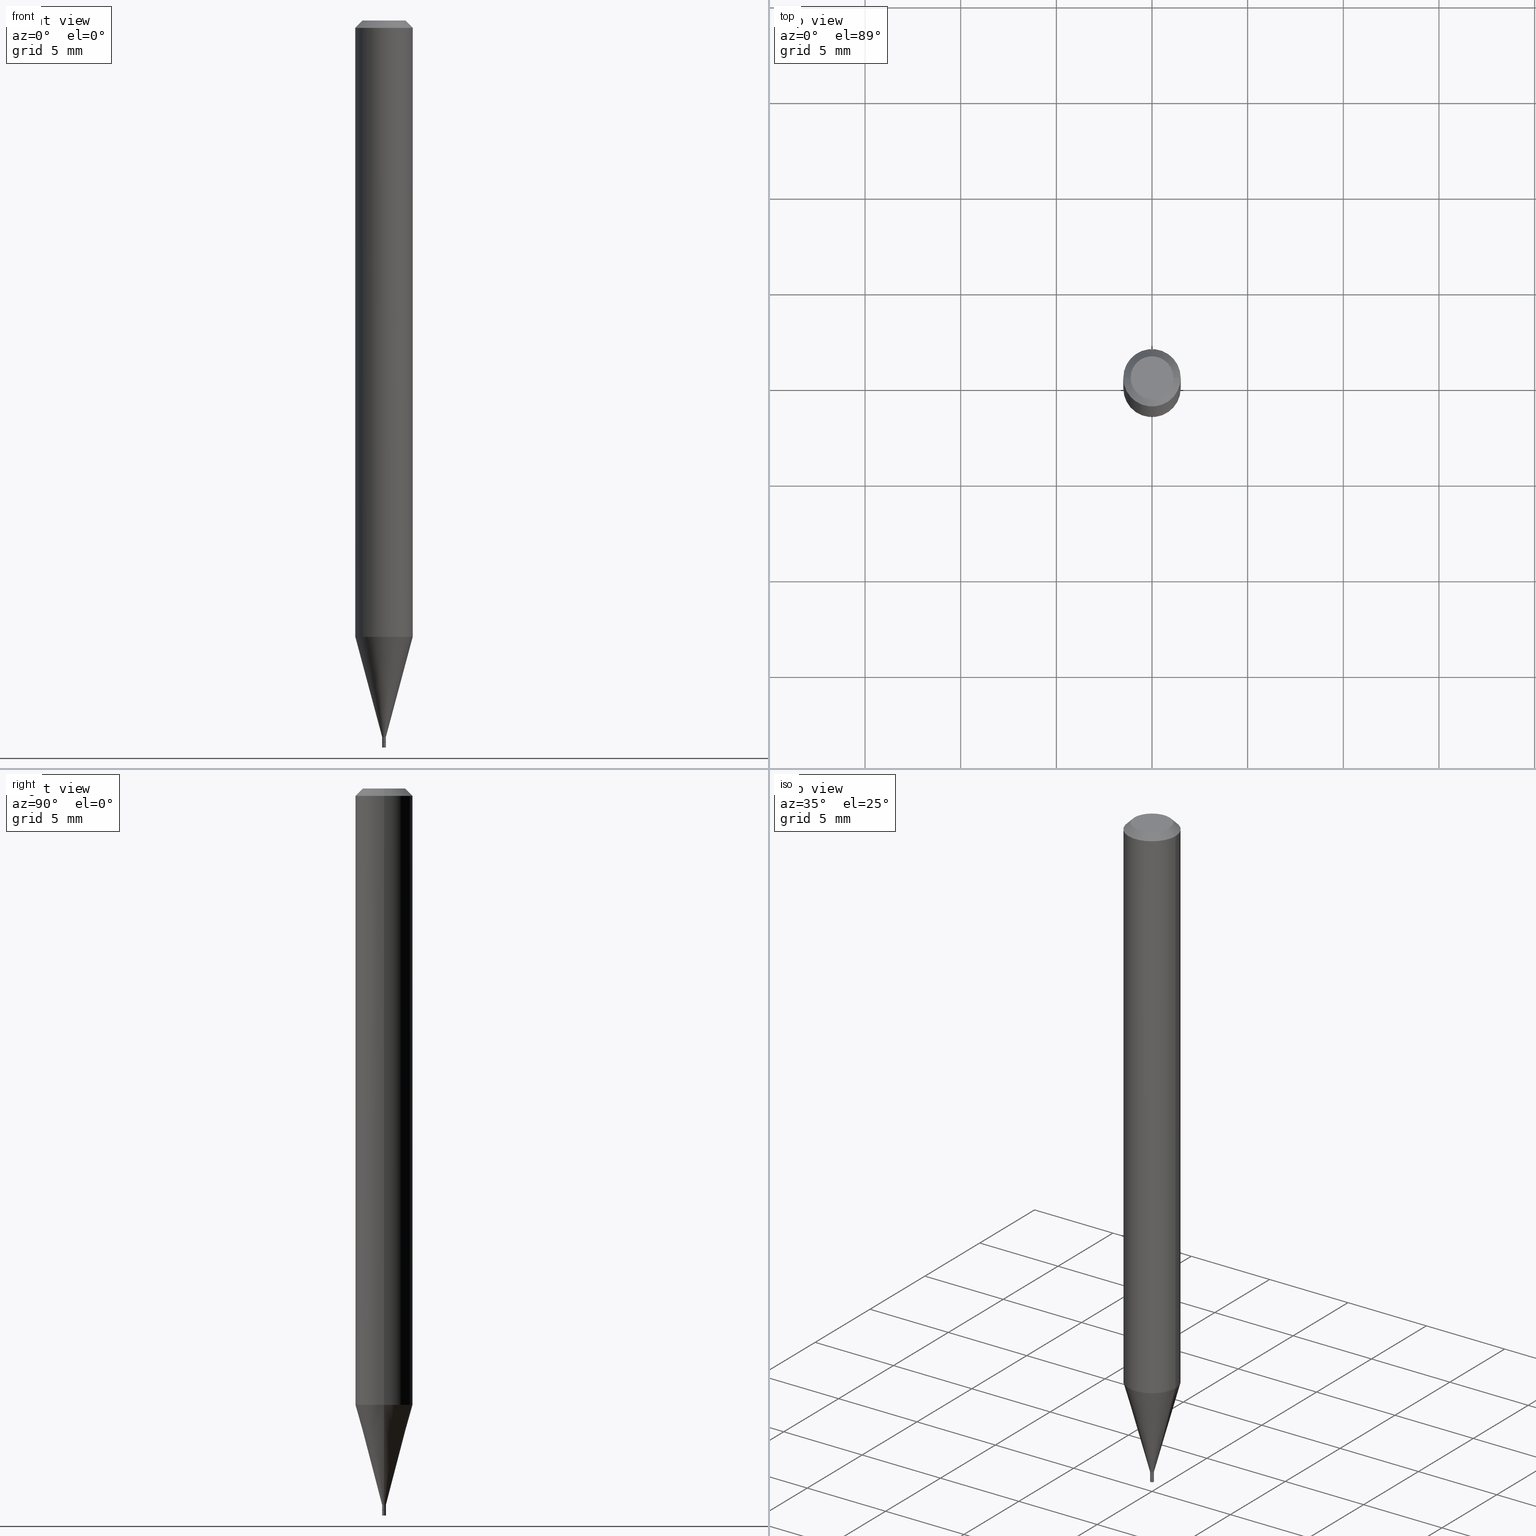
[diagram: canonical four-view strip — front | top / right | iso, engineering-drawing reading convention]
A machine part, canonical four-view strip (front | top / right | iso — engineering-drawing reading convention). The complete STEP part file that produces these views, byte-faithful:
ISO-10303-21;
HEADER;
FILE_DESCRIPTION (( 'STEP AP203' ),
    '1' );
FILE_NAME ('01801.STEP',
    '2024-03-20T01:22:48',
    ( '' ),
    ( '' ),
    'SwSTEP 2.0',
    'SolidWorks 2023',
    '' );
FILE_SCHEMA (( 'CONFIG_CONTROL_DESIGN' ));
ENDSEC;

DATA;
#1 = VERTEX_POINT ( 'NONE', #34 ) ;
#2 = DIRECTION ( 'NONE',  ( 1.000000000000000000, -6.982962677686224112E-15, 0.000000000000000000 ) ) ;
#3 = PERSON_AND_ORGANIZATION ( #302, #241 ) ;
#4 = CIRCLE ( 'NONE', #74, 0.003449999999999872006 ) ;
#5 = ORIENTED_EDGE ( 'NONE', *, *, #448, .T. ) ;
#6 = DIRECTION ( 'NONE',  ( -2.445468806185136597E-29, 3.491481338843145583E-15, 1.000000000000000000 ) ) ;
#7 = EDGE_CURVE ( 'NONE', #266, #382, #298, .T. ) ;
#8 = AXIS2_PLACEMENT_3D ( 'NONE', #439, #111, #260 ) ;
#9 = CC_DESIGN_PERSON_AND_ORGANIZATION_ASSIGNMENT ( #169, #415, ( #187 ) ) ;
#10 = ORIENTED_EDGE ( 'NONE', *, *, #262, .T. ) ;
#11 = CARTESIAN_POINT ( 'NONE',  ( 0.05904999999999999832, -4.841162332867759001E-15, -1.268464000502953493 ) ) ;
#12 = EDGE_LOOP ( 'NONE', ( #151, #57, #171, #96 ) ) ;
#13 = DIRECTION ( 'NONE',  ( 1.000000000000000000, -6.982962677686267499E-15, 4.876176775795936353E-29 ) ) ;
#14 = LINE ( 'NONE', #44, #290 ) ;
#15 = CC_DESIGN_PERSON_AND_ORGANIZATION_ASSIGNMENT ( #3, #319, ( #146 ) ) ;
#16 = AXIS2_PLACEMENT_3D ( 'NONE', #360, #25, #386 ) ;
#17 = AXIS2_PLACEMENT_3D ( 'NONE', #395, #287, #170 ) ;
#18 = CARTESIAN_POINT ( 'NONE',  ( 3.629809349020597767E-29, -5.182405751244879809E-15, -1.484299999999999731 ) ) ;
#19 = FACE_OUTER_BOUND ( 'NONE', #296, .T. ) ;
#20 = CONICAL_SURFACE ( 'NONE', #204, 0.003949999999999506857, 0.2617993877991499629 ) ;
#21 = ORIENTED_EDGE ( 'NONE', *, *, #354, .T. ) ;
#22 = PLANE ( 'NONE',  #59 ) ;
#23 = COORDINATED_UNIVERSAL_TIME_OFFSET ( 5, 0, .BEHIND. ) ;
#24 = ORIENTED_EDGE ( 'NONE', *, *, #147, .T. ) ;
#25 = DIRECTION ( 'NONE',  ( -2.445468806185136597E-29, 3.491481338843145583E-15, 1.000000000000000000 ) ) ;
#26 = EDGE_CURVE ( 'NONE', #304, #199, #133, .T. ) ;
#27 = DATE_AND_TIME ( #425, #155 ) ;
#28 = ORIENTED_EDGE ( 'NONE', *, *, #70, .F. ) ;
#29 = VECTOR ( 'NONE', #267, 39.37007874015748143 ) ;
#30 = EDGE_LOOP ( 'NONE', ( #349, #101, #76, #447 ) ) ;
#31 = ADVANCED_FACE ( 'NONE', ( #175 ), #229, .T. ) ;
#32 = DIRECTION ( 'NONE',  ( 1.000000000000000000, -6.982962677686266711E-15, 4.876176775795936353E-29 ) ) ;
#33 = COORDINATED_UNIVERSAL_TIME_OFFSET ( 5, 0, .BEHIND. ) ;
#34 = CARTESIAN_POINT ( 'NONE',  ( -0.003949999999999873751, -5.174939053081532685E-15, -1.484299999999999731 ) ) ;
#35 = ADVANCED_FACE ( 'NONE', ( #72 ), #409, .T. ) ;
#36 = VERTEX_POINT ( 'NONE', #350 ) ;
#37 = CLOSED_SHELL ( 'NONE', ( #398, #324, #47, #208 ) ) ;
#38 = AXIS2_PLACEMENT_3D ( 'NONE', #383, #61, #64 ) ;
#39 = CC_DESIGN_APPROVAL ( #455, ( #187 ) ) ;
#40 = CARTESIAN_POINT ( 'NONE',  ( -0.003949999999999873751, -5.174939053081532685E-15, -1.496099999999999985 ) ) ;
#41 = ORIENTED_EDGE ( 'NONE', *, *, #389, .F. ) ;
#42 = CARTESIAN_POINT ( 'NONE',  ( 3.604865567197509774E-29, -5.146792641588681136E-15, -1.474099999999999966 ) ) ;
#43 = CARTESIAN_POINT ( 'NONE',  ( 3.629809349020597767E-29, -5.182405751244879809E-15, -1.484299999999999731 ) ) ;
#44 = CARTESIAN_POINT ( 'NONE',  ( 0.05904999999999999832, -4.574846268510561447E-16, -0.01499999999999999944 ) ) ;
#45 = AXIS2_PLACEMENT_3D ( 'NONE', #174, #445, #81 ) ;
#46 = CARTESIAN_POINT ( 'NONE',  ( 3.101989144998780290E-29, -4.428818386750384870E-15, -1.268464000502953493 ) ) ;
#47 = ADVANCED_FACE ( 'NONE', ( #437 ), #255, .T. ) ;
#48 = CARTESIAN_POINT ( 'NONE',  ( 0.000000000000000000, 0.000000000000000000, 0.000000000000000000 ) ) ;
#49 = PERSON_AND_ORGANIZATION_ROLE ( 'design_owner' ) ;
#50 = PRODUCT_DEFINITION ( 'UNKNOWN', '', #187, #261 ) ;
#51 = DIRECTION ( 'NONE',  ( -1.000000000000000000, 6.982962677686265922E-15, -4.876176775795935793E-29 ) ) ;
#52 = CARTESIAN_POINT ( 'NONE',  ( -0.003449999999999872006, -5.155242799687046274E-15, -1.484299999999999731 ) ) ;
#53 = CIRCLE ( 'NONE', #410, 0.05904999999999999832 ) ;
#54 = FACE_OUTER_BOUND ( 'NONE', #63, .T. ) ;
#55 = DIRECTION ( 'NONE',  ( 1.000000000000000000, -6.982962677686265922E-15, 4.876176775795935793E-29 ) ) ;
#56 = APPROVAL ( #446, 'UNSPECIFIED' ) ;
#57 = ORIENTED_EDGE ( 'NONE', *, *, #389, .T. ) ;
#59 = AXIS2_PLACEMENT_3D ( 'NONE', #282, #234, #55 ) ;
#58 = SECURITY_CLASSIFICATION_LEVEL ( 'unclassified' ) ;
#60 = VERTEX_POINT ( 'NONE', #105 ) ;
#61 = DIRECTION ( 'NONE',  ( -2.445468806185136597E-29, 3.491481338843145583E-15, 1.000000000000000000 ) ) ;
#62 = DIRECTION ( 'NONE',  ( -2.445468806185136597E-29, 3.491481338843145583E-15, 1.000000000000000000 ) ) ;
#63 = EDGE_LOOP ( 'NONE', ( #21, #161 ) ) ;
#64 = DIRECTION ( 'NONE',  ( 1.000000000000000000, -6.982962677686352696E-15, 0.000000000000000000 ) ) ;
#65 = EDGE_LOOP ( 'NONE', ( #243, #24, #346, #194 ) ) ;
#66 = FACE_OUTER_BOUND ( 'NONE', #65, .T. ) ;
#67 = COORDINATED_UNIVERSAL_TIME_OFFSET ( 5, 0, .BEHIND. ) ;
#68 = CIRCLE ( 'NONE', #104, 0.003949999999999506857 ) ;
#69 = ORIENTED_EDGE ( 'NONE', *, *, #165, .F. ) ;
#70 = EDGE_CURVE ( 'NONE', #190, #198, #68, .T. ) ;
#71 = PRODUCT_DEFINITION_SHAPE ( 'NONE', 'NONE',  #50 ) ;
#72 = FACE_OUTER_BOUND ( 'NONE', #314, .T. ) ;
#73 = DIRECTION ( 'NONE',  ( 1.000000000000000000, -6.982962677686362163E-15, 0.000000000000000000 ) ) ;
#74 = AXIS2_PLACEMENT_3D ( 'NONE', #115, #228, #364 ) ;
#75 = CARTESIAN_POINT ( 'NONE',  ( 0.003949999999999873751, -5.251187933620089416E-15, -1.496099999999999985 ) ) ;
#76 = ORIENTED_EDGE ( 'NONE', *, *, #189, .T. ) ;
#77 = CYLINDRICAL_SURFACE ( 'NONE', #451, 0.05904999999999999832 ) ;
#78 = DIRECTION ( 'NONE',  ( -2.445468806185136597E-29, 3.491481338843145583E-15, 1.000000000000000000 ) ) ;
#79 = DIRECTION ( 'NONE',  ( 1.000000000000000000, -6.982962677686381095E-15, 0.000000000000000000 ) ) ;
#80 = EDGE_CURVE ( 'NONE', #248, #283, #450, .T. ) ;
#81 = DIRECTION ( 'NONE',  ( 1.000000000000000000, -6.982962677686267499E-15, 4.876176775795936353E-29 ) ) ;
#82 = CIRCLE ( 'NONE', #284, 0.04404999999999999888 ) ;
#83 = FACE_OUTER_BOUND ( 'NONE', #12, .T. ) ;
#84 = PLANE ( 'NONE',  #299 ) ;
#85 = COORDINATED_UNIVERSAL_TIME_OFFSET ( 5, 0, .BEHIND. ) ;
#86 = CARTESIAN_POINT ( 'NONE',  ( 3.629809349020597767E-29, -5.182405751244879809E-15, -1.484299999999999731 ) ) ;
#87 = LINE ( 'NONE', #114, #29 ) ;
#88 = VECTOR ( 'NONE', #371, 39.37007874015748143 ) ;
#89 = ORIENTED_EDGE ( 'NONE', *, *, #189, .F. ) ;
#90 = DIRECTION ( 'NONE',  ( -2.445468806185136877E-29, 3.491481338843145188E-15, 1.000000000000000000 ) ) ;
#91 = VERTEX_POINT ( 'NONE', #361 ) ;
#92 = ADVANCED_FACE ( 'NONE', ( #139 ), #142, .F. ) ;
#93 = ORIENTED_EDGE ( 'NONE', *, *, #7, .F. ) ;
#94 = AXIS2_PLACEMENT_3D ( 'NONE', #18, #231, #264 ) ;
#95 = PRODUCT_RELATED_PRODUCT_CATEGORY ( 'detail', '', ( #214 ) ) ;
#96 = ORIENTED_EDGE ( 'NONE', *, *, #262, .F. ) ;
#97 = FACE_OUTER_BOUND ( 'NONE', #309, .T. ) ;
#98 = APPROVAL_ROLE ( '' ) ;
#99 = ORIENTED_EDGE ( 'NONE', *, *, #277, .T. ) ;
#100 = DATE_AND_TIME ( #159, #178 ) ;
#101 = ORIENTED_EDGE ( 'NONE', *, *, #235, .T. ) ;
#102 = EDGE_CURVE ( 'NONE', #266, #36, #252, .T. ) ;
#103 = DIRECTION ( 'NONE',  ( -2.445468806185136597E-29, 3.491481338843145583E-15, 1.000000000000000000 ) ) ;
#104 = AXIS2_PLACEMENT_3D ( 'NONE', #42, #257, #79 ) ;
#105 = CARTESIAN_POINT ( 'NONE',  ( 0.05904999999999999832, -4.647161662000212105E-16, -0.01499999999999999944 ) ) ;
#106 = LOCAL_TIME ( 21, 22, 48.00000000000000000, #85 ) ;
#107 = LOCAL_TIME ( 21, 22, 48.00000000000000000, #378 ) ;
#108 = ADVANCED_BREP_SHAPE_REPRESENTATION ( '01801', ( #440, #433, #400 ), #172 ) ;
#109 = CARTESIAN_POINT ( 'NONE',  ( -0.05904999999999999832, 3.599717260347268549E-16, -0.01499999999999999944 ) ) ;
#110 = ADVANCED_FACE ( 'NONE', ( #83 ), #220, .T. ) ;
#111 = DIRECTION ( 'NONE',  ( -2.445468806185136597E-29, 3.491481338843145583E-15, 1.000000000000000000 ) ) ;
#112 = DIRECTION ( 'NONE',  ( -2.438088387897960049E-29, 3.491481338843145188E-15, 1.000000000000000000 ) ) ;
#113 = AXIS2_PLACEMENT_3D ( 'NONE', #48, #181, #13 ) ;
#114 = CARTESIAN_POINT ( 'NONE',  ( -0.003949999999999650839, 2.806643806252147640E-17, -1.942979360650516178E-31 ) ) ;
#115 = CARTESIAN_POINT ( 'NONE',  ( 3.629809349020597767E-29, -5.182405751244879809E-15, -1.484299999999999731 ) ) ;
#116 = DIRECTION ( 'NONE',  ( 2.438088387897960049E-29, -3.491481338843145188E-15, -1.000000000000000000 ) ) ;
#117 = CARTESIAN_POINT ( 'NONE',  ( 0.003949999999999650839, -2.758270257685831733E-17, 1.926089826439224533E-31 ) ) ;
#118 = VECTOR ( 'NONE', #223, 39.37007874015748143 ) ;
#119 = PERSON_AND_ORGANIZATION ( #302, #241 ) ;
#120 = VERTEX_POINT ( 'NONE', #40 ) ;
#121 = ORIENTED_EDGE ( 'NONE', *, *, #102, .F. ) ;
#122 = CARTESIAN_POINT ( 'NONE',  ( -0.05904999999999999832, 4.195754854663391478E-16, -2.904631170795521892E-30 ) ) ;
#123 = PERSON_AND_ORGANIZATION ( #302, #241 ) ;
#124 = ORIENTED_EDGE ( 'NONE', *, *, #251, .T. ) ;
#125 = DIRECTION ( 'NONE',  ( -2.445468806185136877E-29, 3.491481338843145188E-15, 1.000000000000000000 ) ) ;
#126 = APPROVAL_PERSON_ORGANIZATION ( #119, #56, #224 ) ;
#127 = VERTEX_POINT ( 'NONE', #75 ) ;
#128 = ORIENTED_EDGE ( 'NONE', *, *, #70, .T. ) ;
#129 = APPROVAL_STATUS ( 'not_yet_approved' ) ;
#130 = EDGE_CURVE ( 'NONE', #304, #348, #363, .T. ) ;
#131 = UNCERTAINTY_MEASURE_WITH_UNIT (LENGTH_MEASURE( 1.000000000000000082E-05 ), #370, 'distance_accuracy_value', 'NONE');
#132 = EDGE_CURVE ( 'NONE', #91, #36, #279, .T. ) ;
#133 = LINE ( 'NONE', #109, #315 ) ;
#134 = ORIENTED_EDGE ( 'NONE', *, *, #448, .F. ) ;
#135 =( LENGTH_UNIT ( ) NAMED_UNIT ( * ) SI_UNIT ( $, .METRE. ) );
#136 = CARTESIAN_POINT ( 'NONE',  ( 0.000000000000000000, 0.000000000000000000, 0.000000000000000000 ) ) ;
#137 = DIRECTION ( 'NONE',  ( 0.7071067811865647812, -2.468850131082438104E-15, 0.7071067811865301422 ) ) ;
#138 = ORIENTED_EDGE ( 'NONE', *, *, #80, .F. ) ;
#139 = FACE_OUTER_BOUND ( 'NONE', #416, .T. ) ;
#140 = EDGE_CURVE ( 'NONE', #382, #266, #4, .T. ) ;
#141 = CARTESIAN_POINT ( 'NONE',  ( 1.050665501000263892E-45, -1.500071880218040753E-31, -4.296376622522831856E-17 ) ) ;
#142 = PLANE ( 'NONE',  #211 ) ;
#143 = CARTESIAN_POINT ( 'NONE',  ( 0.003949999999999873751, -5.209988453821739566E-15, -1.484299999999999731 ) ) ;
#144 = CLOSED_SHELL ( 'NONE', ( #152, #184, #35, #110, #379, #344, #424, #31, #222, #92, #405, #311 ) ) ;
#145 = DIRECTION ( 'NONE',  ( 0.7071067811865486830, -7.319954787623260779E-15, -0.7071067811865464625 ) ) ;
#146 = SECURITY_CLASSIFICATION ( '', '', #58 ) ;
#147 = EDGE_CURVE ( 'NONE', #198, #190, #399, .T. ) ;
#148 = DIRECTION ( 'NONE',  ( 1.000000000000000000, 0.000000000000000000, 0.000000000000000000 ) ) ;
#149 = CARTESIAN_POINT ( 'NONE',  ( 3.075995059520799729E-16, 0.04404999999999999888, -1.752816360886547343E-16 ) ) ;
#150 = APPLICATION_PROTOCOL_DEFINITION ( 'international standard', 'config_control_design', 1994, #206 ) ;
#151 = ORIENTED_EDGE ( 'NONE', *, *, #80, .T. ) ;
#152 = ADVANCED_FACE ( 'NONE', ( #192 ), #358, .T. ) ;
#153 = DIRECTION ( 'NONE',  ( -0.2588190451025212391, 5.211531920934549464E-15, 0.9659258262890679791 ) ) ;
#154 = CONICAL_SURFACE ( 'NONE', #268, 0.003949999999999506857, 0.2617993877991499629 ) ;
#155 = LOCAL_TIME ( 21, 22, 48.00000000000000000, #33 ) ;
#156 = DATE_AND_TIME ( #193, #107 ) ;
#157 = ORIENTED_EDGE ( 'NONE', *, *, #277, .F. ) ;
#158 = DIRECTION ( 'NONE',  ( -2.445468806185136597E-29, 3.491481338843145583E-15, 1.000000000000000000 ) ) ;
#159 = CALENDAR_DATE ( 2024, 19, 3 ) ;
#160 = ORIENTED_EDGE ( 'NONE', *, *, #132, .T. ) ;
#161 = ORIENTED_EDGE ( 'NONE', *, *, #256, .T. ) ;
#162 = DIRECTION ( 'NONE',  ( -2.445468806185136597E-29, 3.491481338843145583E-15, 1.000000000000000000 ) ) ;
#163 = AXIS2_PLACEMENT_3D ( 'NONE', #213, #291, #357 ) ;
#164 = CONICAL_SURFACE ( 'NONE', #94, 0.003449999999999872006, 0.7853981633974728149 ) ;
#165 = EDGE_CURVE ( 'NONE', #348, #60, #14, .T. ) ;
#166 = ORIENTED_EDGE ( 'NONE', *, *, #412, .F. ) ;
#167 = DIRECTION ( 'NONE',  ( 1.000000000000000000, -6.982962677686381095E-15, 0.000000000000000000 ) ) ;
#168 = CALENDAR_DATE ( 2024, 19, 3 ) ;
#169 = PERSON_AND_ORGANIZATION ( #302, #241 ) ;
#170 = DIRECTION ( 'NONE',  ( 1.000000000000000000, -6.982962677686266711E-15, 0.000000000000000000 ) ) ;
#171 = ORIENTED_EDGE ( 'NONE', *, *, #244, .F. ) ;
#172 =( GEOMETRIC_REPRESENTATION_CONTEXT ( 3 ) GLOBAL_UNCERTAINTY_ASSIGNED_CONTEXT ( ( #131 ) ) GLOBAL_UNIT_ASSIGNED_CONTEXT ( ( #370, #332, #335 ) ) REPRESENTATION_CONTEXT ( 'NONE', 'WORKASPACE' ) );
#173 = CARTESIAN_POINT ( 'NONE',  ( 0.003449999999999872006, -5.206496972482896558E-15, -1.484299999999999731 ) ) ;
#174 = CARTESIAN_POINT ( 'NONE',  ( 0.000000000000000000, 0.000000000000000000, 0.000000000000000000 ) ) ;
#175 = FACE_OUTER_BOUND ( 'NONE', #460, .T. ) ;
#176 = AXIS2_PLACEMENT_3D ( 'NONE', #136, #325, #434 ) ;
#177 = AXIS2_PLACEMENT_3D ( 'NONE', #461, #317, #341 ) ;
#178 = LOCAL_TIME ( 21, 22, 48.00000000000000000, #67 ) ;
#179 = CARTESIAN_POINT ( 'NONE',  ( 2.758270257689616417E-17, 0.003949999999994691265, -1.484299999999999731 ) ) ;
#180 = APPLICATION_CONTEXT ( 'configuration controlled 3d designs of mechanical parts and assemblies' ) ;
#181 = DIRECTION ( 'NONE',  ( -2.445468806185136597E-29, 3.491481338843145583E-15, 1.000000000000000000 ) ) ;
#182 = APPLICATION_PROTOCOL_DEFINITION ( 'international standard', 'config_control_design', 1994, #180 ) ;
#183 = DIRECTION ( 'NONE',  ( 0.2588190451025212391, 1.565188264969622362E-15, 0.9659258262890679791 ) ) ;
#184 = ADVANCED_FACE ( 'NONE', ( #19 ), #164, .T. ) ;
#185 = LINE ( 'NONE', #402, #420 ) ;
#186 = AXIS2_PLACEMENT_3D ( 'NONE', #179, #188, #51 ) ;
#187 = PRODUCT_DEFINITION_FORMATION_WITH_SPECIFIED_SOURCE ( 'ANY', '', #214, .NOT_KNOWN. ) ;
#188 = DIRECTION ( 'NONE',  ( 2.438088387897960049E-29, -3.491481338843145188E-15, -1.000000000000000000 ) ) ;
#189 = EDGE_CURVE ( 'NONE', #91, #190, #404, .T. ) ;
#190 = VERTEX_POINT ( 'NONE', #330 ) ;
#191 = CARTESIAN_POINT ( 'NONE',  ( 0.04404999999999999888, -3.798447818264461065E-16, -4.296376622522591500E-17 ) ) ;
#192 = FACE_OUTER_BOUND ( 'NONE', #237, .T. ) ;
#193 = CALENDAR_DATE ( 2024, 19, 3 ) ;
#194 = ORIENTED_EDGE ( 'NONE', *, *, #295, .F. ) ;
#195 = CARTESIAN_POINT ( 'NONE',  ( 3.604865567197509774E-29, -5.146792641588681136E-15, -1.474099999999999966 ) ) ;
#196 = CIRCLE ( 'NONE', #17, 0.05904999999999999832 ) ;
#197 = DATE_TIME_ROLE ( 'creation_date' ) ;
#198 = VERTEX_POINT ( 'NONE', #301 ) ;
#199 = VERTEX_POINT ( 'NONE', #375 ) ;
#200 = ORIENTED_EDGE ( 'NONE', *, *, #295, .T. ) ;
#201 = CARTESIAN_POINT ( 'NONE',  ( 3.628586614617505526E-29, -5.180660010575458306E-15, -1.483799999999999786 ) ) ;
#202 = CARTESIAN_POINT ( 'NONE',  ( 3.658665880933582389E-29, -5.223605231043229660E-15, -1.496099999999999985 ) ) ;
#203 = ORIENTED_EDGE ( 'NONE', *, *, #132, .F. ) ;
#204 = AXIS2_PLACEMENT_3D ( 'NONE', #195, #162, #167 ) ;
#205 = CC_DESIGN_APPROVAL ( #366, ( #146 ) ) ;
#206 = APPLICATION_CONTEXT ( 'configuration controlled 3d designs of mechanical parts and assemblies' ) ;
#207 = PERSON_AND_ORGANIZATION ( #302, #241 ) ;
#208 = ADVANCED_FACE ( 'NONE', ( #54 ), #407, .F. ) ;
#209 = DIRECTION ( 'NONE',  ( -2.445468806185136877E-29, 3.491481338843145188E-15, 1.000000000000000000 ) ) ;
#210 = DIRECTION ( 'NONE',  ( 1.000000000000000000, -6.982962677686273021E-15, 0.000000000000000000 ) ) ;
#211 = AXIS2_PLACEMENT_3D ( 'NONE', #43, #112, #327 ) ;
#212 = AXIS2_PLACEMENT_3D ( 'NONE', #202, #250, #323 ) ;
#213 = CARTESIAN_POINT ( 'NONE',  ( 3.668203209277705088E-31, -5.237222008264718399E-17, -0.01499999999999999944 ) ) ;
#214 = PRODUCT ( '01801', '01801', '', ( #376 ) ) ;
#215 = CARTESIAN_POINT ( 'NONE',  ( 3.668203209277705088E-31, -5.237222008264718399E-17, -0.01499999999999999944 ) ) ;
#216 = LINE ( 'NONE', #321, #254 ) ;
#217 = DIRECTION ( 'NONE',  ( -2.445468806185136597E-29, 3.491481338843145583E-15, 1.000000000000000000 ) ) ;
#218 = CONICAL_SURFACE ( 'NONE', #38, 0.003449999999999872006, 0.7853981633974728149 ) ;
#219 = CARTESIAN_POINT ( 'NONE',  ( -0.04404999999999999888, 3.337856159934033646E-16, -4.296376622523056188E-17 ) ) ;
#220 = CYLINDRICAL_SURFACE ( 'NONE', #435, 0.05904999999999999832 ) ;
#221 = PERSON_AND_ORGANIZATION ( #302, #241 ) ;
#222 = ADVANCED_FACE ( 'NONE', ( #441 ), #84, .F. ) ;
#223 = DIRECTION ( 'NONE',  ( -2.445468806185136877E-29, 3.491481338843145188E-15, 1.000000000000000000 ) ) ;
#224 = APPROVAL_ROLE ( '' ) ;
#225 = EDGE_CURVE ( 'NONE', #190, #248, #185, .T. ) ;
#226 = DIRECTION ( 'NONE',  ( 1.000000000000000000, -6.982962677686224112E-15, 0.000000000000000000 ) ) ;
#227 = CARTESIAN_POINT ( 'NONE',  ( 0.000000000000000000, 0.000000000000000000, 0.000000000000000000 ) ) ;
#228 = DIRECTION ( 'NONE',  ( -2.445468806185136597E-29, 3.491481338843145583E-15, 1.000000000000000000 ) ) ;
#229 = CONICAL_SURFACE ( 'NONE', #418, 0.05904999999999999832, 0.7853981633974498333 ) ;
#230 = CIRCLE ( 'NONE', #373, 0.003949999999999873751 ) ;
#231 = DIRECTION ( 'NONE',  ( -2.445468806185136597E-29, 3.491481338843145583E-15, 1.000000000000000000 ) ) ;
#232 = ORIENTED_EDGE ( 'NONE', *, *, #165, .T. ) ;
#233 = DIMENSIONAL_EXPONENTS ( 1.000000000000000000, 0.000000000000000000, 0.000000000000000000, 0.000000000000000000, 0.000000000000000000, 0.000000000000000000, 0.000000000000000000 ) ;
#234 = DIRECTION ( 'NONE',  ( -2.438088387897960049E-29, 3.491481338843145188E-15, 1.000000000000000000 ) ) ;
#235 = EDGE_CURVE ( 'NONE', #36, #91, #263, .T. ) ;
#236 = DIRECTION ( 'NONE',  ( 0.000000000000000000, 0.000000000000000000, 1.000000000000000000 ) ) ;
#237 = EDGE_LOOP ( 'NONE', ( #160, #124, #28, #89 ) ) ;
#238 = CYLINDRICAL_SURFACE ( 'NONE', #432, 0.003949999999999873751 ) ;
#239 = ORIENTED_EDGE ( 'NONE', *, *, #140, .T. ) ;
#240 = DIRECTION ( 'NONE',  ( 1.000000000000000000, -6.982962677686266711E-15, 4.876176775795935232E-29 ) ) ;
#241 = ORGANIZATION ( 'UNSPECIFIED', 'UNSPECIFIED', '' ) ;
#242 = APPROVAL_STATUS ( 'not_yet_approved' ) ;
#243 = ORIENTED_EDGE ( 'NONE', *, *, #372, .F. ) ;
#244 = EDGE_CURVE ( 'NONE', #60, #199, #53, .T. ) ;
#245 = APPROVAL_DATE_TIME ( #27, #455 ) ;
#246 = ORIENTED_EDGE ( 'NONE', *, *, #412, .T. ) ;
#247 = APPROVAL_DATE_TIME ( #276, #366 ) ;
#248 = VERTEX_POINT ( 'NONE', #11 ) ;
#249 = VECTOR ( 'NONE', #438, 39.37007874015748854 ) ;
#250 = DIRECTION ( 'NONE',  ( -2.445468806185136597E-29, 3.491481338843145583E-15, 1.000000000000000000 ) ) ;
#251 = EDGE_CURVE ( 'NONE', #36, #198, #87, .T. ) ;
#252 = LINE ( 'NONE', #293, #249 ) ;
#253 = DIRECTION ( 'NONE',  ( 2.445468806185136597E-29, -3.491481338843145583E-15, -1.000000000000000000 ) ) ;
#254 = VECTOR ( 'NONE', #209, 39.37007874015748143 ) ;
#255 = CYLINDRICAL_SURFACE ( 'NONE', #176, 0.003949999999999873751 ) ;
#256 = EDGE_CURVE ( 'NONE', #1, #313, #230, .T. ) ;
#257 = DIRECTION ( 'NONE',  ( -2.445468806185136597E-29, 3.491481338843145583E-15, 1.000000000000000000 ) ) ;
#258 = CC_DESIGN_DATE_AND_TIME_ASSIGNMENT ( #318, #197, ( #50 ) ) ;
#259 = ORIENTED_EDGE ( 'NONE', *, *, #396, .F. ) ;
#260 = DIRECTION ( 'NONE',  ( 1.000000000000000000, -6.982962677686273021E-15, 0.000000000000000000 ) ) ;
#261 = DESIGN_CONTEXT ( 'detailed design', #206, 'design' ) ;
#262 = EDGE_CURVE ( 'NONE', #248, #60, #339, .T. ) ;
#263 = CIRCLE ( 'NONE', #280, 0.003949999999999795688 ) ;
#264 = DIRECTION ( 'NONE',  ( 1.000000000000000000, -6.982962677686352696E-15, 0.000000000000000000 ) ) ;
#265 = PERSON_AND_ORGANIZATION_ROLE ( 'creator' ) ;
#266 = VERTEX_POINT ( 'NONE', #52 ) ;
#267 = DIRECTION ( 'NONE',  ( -2.445468806185136877E-29, 3.491481338843145188E-15, 1.000000000000000000 ) ) ;
#268 = AXIS2_PLACEMENT_3D ( 'NONE', #269, #158, #458 ) ;
#269 = CARTESIAN_POINT ( 'NONE',  ( 3.604865567197509774E-29, -5.146792641588681136E-15, -1.474099999999999966 ) ) ;
#270 = APPROVAL_PERSON_ORGANIZATION ( #207, #455, #98 ) ;
#271 = ORIENTED_EDGE ( 'NONE', *, *, #354, .F. ) ;
#272 = DIRECTION ( 'NONE',  ( -2.445468806185136597E-29, 3.491481338843145583E-15, 1.000000000000000000 ) ) ;
#273 = PERSON_AND_ORGANIZATION_ROLE ( 'creator' ) ;
#274 = EDGE_LOOP ( 'NONE', ( #338, #99 ) ) ;
#275 = CARTESIAN_POINT ( 'NONE',  ( 0.000000000000000000, 0.000000000000000000, 0.000000000000000000 ) ) ;
#276 = DATE_AND_TIME ( #459, #452 ) ;
#277 = EDGE_CURVE ( 'NONE', #348, #304, #82, .T. ) ;
#278 = EDGE_LOOP ( 'NONE', ( #419, #166 ) ) ;
#279 = CIRCLE ( 'NONE', #463, 0.003949999999999795688 ) ;
#280 = AXIS2_PLACEMENT_3D ( 'NONE', #337, #300, #336 ) ;
#281 = ORIENTED_EDGE ( 'NONE', *, *, #396, .T. ) ;
#282 = CARTESIAN_POINT ( 'NONE',  ( 3.577647911566500614E-29, -5.339627574433336753E-15, -1.496099999999999985 ) ) ;
#283 = VERTEX_POINT ( 'NONE', #294 ) ;
#284 = AXIS2_PLACEMENT_3D ( 'NONE', #141, #303, #362 ) ;
#285 = APPROVAL_PERSON_ORGANIZATION ( #312, #366, #429 ) ;
#286 = ORIENTED_EDGE ( 'NONE', *, *, #244, .T. ) ;
#287 = DIRECTION ( 'NONE',  ( -2.445468806185136597E-29, 3.491481338843145583E-15, 1.000000000000000000 ) ) ;
#288 = DIRECTION ( 'NONE',  ( -0.7071067811865486830, 2.468850131082268893E-15, -0.7071067811865464625 ) ) ;
#289 = CARTESIAN_POINT ( 'NONE',  ( 0.000000000000000000, 0.000000000000000000, 0.000000000000000000 ) ) ;
#290 = VECTOR ( 'NONE', #145, 39.37007874015748143 ) ;
#291 = DIRECTION ( 'NONE',  ( 2.445468806185136597E-29, -3.491481338843145583E-15, -1.000000000000000000 ) ) ;
#292 = DIRECTION ( 'NONE',  ( 1.000000000000000000, -6.982962677686381095E-15, 0.000000000000000000 ) ) ;
#293 = CARTESIAN_POINT ( 'NONE',  ( -0.003449999999999872006, -5.157892026861156686E-15, -1.484299999999999731 ) ) ;
#294 = CARTESIAN_POINT ( 'NONE',  ( -0.05904999999999999832, -4.009242901284044588E-15, -1.268464000502953493 ) ) ;
#295 = EDGE_CURVE ( 'NONE', #283, #248, #393, .T. ) ;
#296 = EDGE_LOOP ( 'NONE', ( #239, #359, #203, #316 ) ) ;
#297 = FACE_OUTER_BOUND ( 'NONE', #278, .T. ) ;
#298 = CIRCLE ( 'NONE', #431, 0.003449999999999872006 ) ;
#299 = AXIS2_PLACEMENT_3D ( 'NONE', #149, #116, #369 ) ;
#300 = DIRECTION ( 'NONE',  ( -2.445468806185136597E-29, 3.491481338843145583E-15, 1.000000000000000000 ) ) ;
#301 = CARTESIAN_POINT ( 'NONE',  ( -0.003949999999999506857, -4.563984552405103218E-15, -1.474099999999999966 ) ) ;
#302 = PERSON ( 'UNSPECIFIED', 'UNSPECIFIED', 'UNSPECIFIED', ('UNSPECIFIED'), ('UNSPECIFIED'), ('UNSPECIFIED') ) ;
#303 = DIRECTION ( 'NONE',  ( -2.445468806185136597E-29, 3.491481338843145583E-15, 1.000000000000000000 ) ) ;
#304 = VERTEX_POINT ( 'NONE', #219 ) ;
#305 = AXIS2_PLACEMENT_3D ( 'NONE', #345, #272, #2 ) ;
#306 = CARTESIAN_POINT ( 'NONE',  ( -0.003949999999999873751, 2.806643806252306029E-17, -1.942979360650625655E-31 ) ) ;
#307 = CARTESIAN_POINT ( 'NONE',  ( 3.604865567197509774E-29, -5.146792641588681136E-15, -1.474099999999999966 ) ) ;
#308 = APPROVAL_DATE_TIME ( #156, #56 ) ;
#309 = EDGE_LOOP ( 'NONE', ( #352, #281, #271, #134 ) ) ;
#310 = FACE_OUTER_BOUND ( 'NONE', #388, .T. ) ;
#311 = ADVANCED_FACE ( 'NONE', ( #368 ), #334, .T. ) ;
#312 = PERSON_AND_ORGANIZATION ( #302, #241 ) ;
#313 = VERTEX_POINT ( 'NONE', #143 ) ;
#314 = EDGE_LOOP ( 'NONE', ( #157, #232, #286, #406 ) ) ;
#315 = VECTOR ( 'NONE', #288, 39.37007874015748143 ) ;
#316 = ORIENTED_EDGE ( 'NONE', *, *, #462, .F. ) ;
#317 = DIRECTION ( 'NONE',  ( -2.445468806185136597E-29, 3.491481338843145583E-15, 1.000000000000000000 ) ) ;
#318 = DATE_AND_TIME ( #168, #106 ) ;
#319 = PERSON_AND_ORGANIZATION_ROLE ( 'classification_officer' ) ;
#320 = DIRECTION ( 'NONE',  ( 1.000000000000000000, -6.982962677686352696E-15, 0.000000000000000000 ) ) ;
#321 = CARTESIAN_POINT ( 'NONE',  ( 0.003949999999999873751, -2.758270257685987040E-17, 1.926089826439332914E-31 ) ) ;
#322 = VECTOR ( 'NONE', #137, 39.37007874015748854 ) ;
#323 = DIRECTION ( 'NONE',  ( 1.000000000000000000, -6.982962677686224112E-15, 0.000000000000000000 ) ) ;
#324 = ADVANCED_FACE ( 'NONE', ( #297 ), #22, .F. ) ;
#325 = DIRECTION ( 'NONE',  ( -2.445468806185136597E-29, 3.491481338843145583E-15, 1.000000000000000000 ) ) ;
#326 = DIRECTION ( 'NONE',  ( -2.445468806185136597E-29, 3.491481338843145583E-15, 1.000000000000000000 ) ) ;
#327 = DIRECTION ( 'NONE',  ( 1.000000000000000000, -6.982962677686265922E-15, 4.876176775795935793E-29 ) ) ;
#328 = AXIS2_PLACEMENT_3D ( 'NONE', #46, #331, #210 ) ;
#329 = VECTOR ( 'NONE', #90, 39.37007874015748143 ) ;
#330 = CARTESIAN_POINT ( 'NONE',  ( 0.003949999999999506857, -5.174375344165538526E-15, -1.474099999999999966 ) ) ;
#331 = DIRECTION ( 'NONE',  ( -2.445468806185136597E-29, 3.491481338843145583E-15, 1.000000000000000000 ) ) ;
#332 =( NAMED_UNIT ( * ) PLANE_ANGLE_UNIT ( ) SI_UNIT ( $, .RADIAN. ) );
#333 = ORIENTED_EDGE ( 'NONE', *, *, #462, .T. ) ;
#334 = CYLINDRICAL_SURFACE ( 'NONE', #113, 0.003949999999999650839 ) ;
#335 =( NAMED_UNIT ( * ) SI_UNIT ( $, .STERADIAN. ) SOLID_ANGLE_UNIT ( ) );
#336 = DIRECTION ( 'NONE',  ( 1.000000000000000000, -6.982962677686362163E-15, 0.000000000000000000 ) ) ;
#337 = CARTESIAN_POINT ( 'NONE',  ( 3.628586614617505526E-29, -5.180660010575458306E-15, -1.483799999999999786 ) ) ;
#338 = ORIENTED_EDGE ( 'NONE', *, *, #130, .T. ) ;
#339 = LINE ( 'NONE', #449, #88 ) ;
#340 = ORIENTED_EDGE ( 'NONE', *, *, #256, .F. ) ;
#341 = DIRECTION ( 'NONE',  ( 1.000000000000000000, -6.982962677686224112E-15, 0.000000000000000000 ) ) ;
#342 = ORIENTED_EDGE ( 'NONE', *, *, #140, .F. ) ;
#343 = CIRCLE ( 'NONE', #212, 0.003949999999999873751 ) ;
#344 = ADVANCED_FACE ( 'NONE', ( #66 ), #20, .T. ) ;
#345 = CARTESIAN_POINT ( 'NONE',  ( 3.629809349020597767E-29, -5.182405751244879809E-15, -1.484299999999999731 ) ) ;
#346 = ORIENTED_EDGE ( 'NONE', *, *, #225, .T. ) ;
#347 = LINE ( 'NONE', #421, #365 ) ;
#348 = VERTEX_POINT ( 'NONE', #191 ) ;
#349 = ORIENTED_EDGE ( 'NONE', *, *, #251, .F. ) ;
#350 = CARTESIAN_POINT ( 'NONE',  ( -0.003949999999999795688, -5.152593572512935862E-15, -1.483799999999999786 ) ) ;
#351 = EDGE_CURVE ( 'NONE', #127, #120, #403, .T. ) ;
#352 = ORIENTED_EDGE ( 'NONE', *, *, #351, .T. ) ;
#353 = LINE ( 'NONE', #173, #322 ) ;
#354 = EDGE_CURVE ( 'NONE', #313, #1, #356, .T. ) ;
#355 = DIRECTION ( 'NONE',  ( 1.000000000000000000, -6.982962677686266711E-15, 4.876176775795936353E-29 ) ) ;
#356 = CIRCLE ( 'NONE', #305, 0.003949999999999873751 ) ;
#357 = DIRECTION ( 'NONE',  ( -1.000000000000000000, 6.982962677686266711E-15, 0.000000000000000000 ) ) ;
#358 = CYLINDRICAL_SURFACE ( 'NONE', #45, 0.003949999999999650839 ) ;
#359 = ORIENTED_EDGE ( 'NONE', *, *, #102, .T. ) ;
#360 = CARTESIAN_POINT ( 'NONE',  ( 1.050665501000263892E-45, -1.500071880218040753E-31, -4.296376622522831856E-17 ) ) ;
#361 = CARTESIAN_POINT ( 'NONE',  ( 0.003949999999999795688, -5.208242713152318062E-15, -1.483799999999999786 ) ) ;
#362 = DIRECTION ( 'NONE',  ( 1.000000000000000000, -6.982962677686265922E-15, 4.871327091275910156E-29 ) ) ;
#363 = CIRCLE ( 'NONE', #16, 0.04404999999999999888 ) ;
#364 = DIRECTION ( 'NONE',  ( 1.000000000000000000, -6.982962677686352696E-15, 0.000000000000000000 ) ) ;
#365 = VECTOR ( 'NONE', #153, 39.37007874015748854 ) ;
#366 = APPROVAL ( #129, 'UNSPECIFIED' ) ;
#367 = EDGE_LOOP ( 'NONE', ( #41, #200, #10, #391 ) ) ;
#368 = FACE_OUTER_BOUND ( 'NONE', #30, .T. ) ;
#369 = DIRECTION ( 'NONE',  ( -1.000000000000000000, 6.982962677686265922E-15, -4.876176775795935793E-29 ) ) ;
#370 =( CONVERSION_BASED_UNIT ( 'INCH', #394 ) LENGTH_UNIT ( ) NAMED_UNIT ( #233 ) );
#371 = DIRECTION ( 'NONE',  ( -2.445468806185136877E-29, 3.491481338843145188E-15, 1.000000000000000000 ) ) ;
#372 = EDGE_CURVE ( 'NONE', #198, #283, #347, .T. ) ;
#373 = AXIS2_PLACEMENT_3D ( 'NONE', #86, #217, #226 ) ;
#374 = CC_DESIGN_APPROVAL ( #56, ( #50 ) ) ;
#375 = CARTESIAN_POINT ( 'NONE',  ( -0.05904999999999999832, -1.821019817950176679E-15, -0.01499999999999999944 ) ) ;
#376 = MECHANICAL_CONTEXT ( 'NONE', #180, 'mechanical' ) ;
#377 = LINE ( 'NONE', #306, #465 ) ;
#378 = COORDINATED_UNIVERSAL_TIME_OFFSET ( 5, 0, .BEHIND. ) ;
#379 = ADVANCED_FACE ( 'NONE', ( #310 ), #154, .T. ) ;
#380 = ORIENTED_EDGE ( 'NONE', *, *, #26, .T. ) ;
#381 = CC_DESIGN_PERSON_AND_ORGANIZATION_ASSIGNMENT ( #456, #265, ( #50 ) ) ;
#382 = VERTEX_POINT ( 'NONE', #454 ) ;
#383 = CARTESIAN_POINT ( 'NONE',  ( 3.629809349020597767E-29, -5.182405751244879809E-15, -1.484299999999999731 ) ) ;
#384 = SHAPE_DEFINITION_REPRESENTATION ( #71, #108 ) ;
#385 = EDGE_LOOP ( 'NONE', ( #259, #246, #5, #340 ) ) ;
#386 = DIRECTION ( 'NONE',  ( 1.000000000000000000, -6.982962677686265922E-15, 4.871327091275910156E-29 ) ) ;
#387 = FACE_OUTER_BOUND ( 'NONE', #464, .T. ) ;
#388 = EDGE_LOOP ( 'NONE', ( #128, #413, #138, #426 ) ) ;
#389 = EDGE_CURVE ( 'NONE', #283, #199, #411, .T. ) ;
#390 = DATE_TIME_ROLE ( 'classification_date' ) ;
#391 = ORIENTED_EDGE ( 'NONE', *, *, #442, .F. ) ;
#392 = CARTESIAN_POINT ( 'NONE',  ( 0.000000000000000000, 0.000000000000000000, 0.000000000000000000 ) ) ;
#393 = CIRCLE ( 'NONE', #8, 0.05904999999999999832 ) ;
#394 = LENGTH_MEASURE_WITH_UNIT ( LENGTH_MEASURE( 0.02539999999999999897 ), #135 );
#395 = CARTESIAN_POINT ( 'NONE',  ( 3.668203209277705088E-31, -5.237222008264718399E-17, -0.01499999999999999944 ) ) ;
#396 = EDGE_CURVE ( 'NONE', #120, #1, #377, .T. ) ;
#397 = DIRECTION ( 'NONE',  ( -1.000000000000000000, 6.982962677686266711E-15, 0.000000000000000000 ) ) ;
#398 = ADVANCED_FACE ( 'NONE', ( #97 ), #238, .T. ) ;
#399 = CIRCLE ( 'NONE', #436, 0.003949999999999506857 ) ;
#400 = AXIS2_PLACEMENT_3D ( 'NONE', #227, #236, #148 ) ;
#401 = DIRECTION ( 'NONE',  ( -2.445468806185136597E-29, 3.491481338843145583E-15, 1.000000000000000000 ) ) ;
#402 = CARTESIAN_POINT ( 'NONE',  ( 0.003949999999999506857, -5.174375344165538526E-15, -1.474099999999999966 ) ) ;
#403 = CIRCLE ( 'NONE', #177, 0.003949999999999873751 ) ;
#404 = LINE ( 'NONE', #117, #118 ) ;
#405 = ADVANCED_FACE ( 'NONE', ( #387 ), #218, .T. ) ;
#406 = ORIENTED_EDGE ( 'NONE', *, *, #26, .F. ) ;
#407 = PLANE ( 'NONE',  #186 ) ;
#408 = DIRECTION ( 'NONE',  ( 1.000000000000000000, -6.982962677686266711E-15, 0.000000000000000000 ) ) ;
#409 = CONICAL_SURFACE ( 'NONE', #163, 0.05904999999999999832, 0.7853981633974498333 ) ;
#410 = AXIS2_PLACEMENT_3D ( 'NONE', #443, #78, #408 ) ;
#411 = LINE ( 'NONE', #122, #329 ) ;
#412 = EDGE_CURVE ( 'NONE', #120, #127, #343, .T. ) ;
#413 = ORIENTED_EDGE ( 'NONE', *, *, #372, .T. ) ;
#414 = CC_DESIGN_PERSON_AND_ORGANIZATION_ASSIGNMENT ( #123, #273, ( #187 ) ) ;
#415 = PERSON_AND_ORGANIZATION_ROLE ( 'design_supplier' ) ;
#416 = EDGE_LOOP ( 'NONE', ( #342, #93 ) ) ;
#417 = DIRECTION ( 'NONE',  ( -2.445468806185136597E-29, 3.491481338843145583E-15, 1.000000000000000000 ) ) ;
#418 = AXIS2_PLACEMENT_3D ( 'NONE', #215, #253, #397 ) ;
#419 = ORIENTED_EDGE ( 'NONE', *, *, #351, .F. ) ;
#420 = VECTOR ( 'NONE', #183, 39.37007874015748854 ) ;
#421 = CARTESIAN_POINT ( 'NONE',  ( -0.003949999999999506857, -5.118726203526160270E-15, -1.474099999999999966 ) ) ;
#422 = CC_DESIGN_SECURITY_CLASSIFICATION ( #146, ( #187 ) ) ;
#423 = ORIENTED_EDGE ( 'NONE', *, *, #7, .T. ) ;
#424 = ADVANCED_FACE ( 'NONE', ( #427 ), #77, .T. ) ;
#425 = CALENDAR_DATE ( 2024, 19, 3 ) ;
#426 = ORIENTED_EDGE ( 'NONE', *, *, #225, .F. ) ;
#427 = FACE_OUTER_BOUND ( 'NONE', #367, .T. ) ;
#428 = CC_DESIGN_DATE_AND_TIME_ASSIGNMENT ( #100, #390, ( #146 ) ) ;
#429 = APPROVAL_ROLE ( '' ) ;
#430 = CARTESIAN_POINT ( 'NONE',  ( 3.629809349020597767E-29, -5.182405751244879809E-15, -1.484299999999999731 ) ) ;
#431 = AXIS2_PLACEMENT_3D ( 'NONE', #430, #401, #320 ) ;
#432 = AXIS2_PLACEMENT_3D ( 'NONE', #275, #417, #240 ) ;
#433 = MANIFOLD_SOLID_BREP ( 'Body-Move/Copy2[2]', #144 ) ;
#434 = DIRECTION ( 'NONE',  ( 1.000000000000000000, -6.982962677686266711E-15, 4.876176775795935232E-29 ) ) ;
#435 = AXIS2_PLACEMENT_3D ( 'NONE', #289, #103, #355 ) ;
#436 = AXIS2_PLACEMENT_3D ( 'NONE', #307, #62, #292 ) ;
#437 = FACE_OUTER_BOUND ( 'NONE', #385, .T. ) ;
#438 = DIRECTION ( 'NONE',  ( -0.7071067811865647812, 7.493145998870415691E-15, 0.7071067811865301422 ) ) ;
#439 = CARTESIAN_POINT ( 'NONE',  ( 3.101989144998780290E-29, -4.428818386750384870E-15, -1.268464000502953493 ) ) ;
#440 = MANIFOLD_SOLID_BREP ( 'Body-Move/Copy2[1]', #37 ) ;
#441 = FACE_OUTER_BOUND ( 'NONE', #274, .T. ) ;
#442 = EDGE_CURVE ( 'NONE', #199, #60, #196, .T. ) ;
#443 = CARTESIAN_POINT ( 'NONE',  ( 3.668203209277705088E-31, -5.237222008264718399E-17, -0.01499999999999999944 ) ) ;
#444 = CC_DESIGN_PERSON_AND_ORGANIZATION_ASSIGNMENT ( #221, #49, ( #214 ) ) ;
#445 = DIRECTION ( 'NONE',  ( -2.445468806185136597E-29, 3.491481338843145583E-15, 1.000000000000000000 ) ) ;
#446 = APPROVAL_STATUS ( 'not_yet_approved' ) ;
#447 = ORIENTED_EDGE ( 'NONE', *, *, #147, .F. ) ;
#448 = EDGE_CURVE ( 'NONE', #127, #313, #216, .T. ) ;
#449 = CARTESIAN_POINT ( 'NONE',  ( 0.05904999999999999832, -4.123439461173740327E-16, 2.879382386107500220E-30 ) ) ;
#450 = CIRCLE ( 'NONE', #328, 0.05904999999999999832 ) ;
#451 = AXIS2_PLACEMENT_3D ( 'NONE', #392, #6, #32 ) ;
#452 = LOCAL_TIME ( 21, 22, 48.00000000000000000, #23 ) ;
#453 = ORIENTED_EDGE ( 'NONE', *, *, #130, .F. ) ;
#454 = CARTESIAN_POINT ( 'NONE',  ( 0.003449999999999872006, -5.206496972482896558E-15, -1.484299999999999731 ) ) ;
#455 = APPROVAL ( #242, 'UNSPECIFIED' ) ;
#456 = PERSON_AND_ORGANIZATION ( #302, #241 ) ;
#457 = ORIENTED_EDGE ( 'NONE', *, *, #235, .F. ) ;
#458 = DIRECTION ( 'NONE',  ( 1.000000000000000000, -6.982962677686381095E-15, 0.000000000000000000 ) ) ;
#459 = CALENDAR_DATE ( 2024, 19, 3 ) ;
#460 = EDGE_LOOP ( 'NONE', ( #69, #453, #380, #466 ) ) ;
#461 = CARTESIAN_POINT ( 'NONE',  ( 3.658665880933582389E-29, -5.223605231043229660E-15, -1.496099999999999985 ) ) ;
#462 = EDGE_CURVE ( 'NONE', #382, #91, #353, .T. ) ;
#463 = AXIS2_PLACEMENT_3D ( 'NONE', #201, #326, #73 ) ;
#464 = EDGE_LOOP ( 'NONE', ( #121, #423, #333, #457 ) ) ;
#465 = VECTOR ( 'NONE', #125, 39.37007874015748143 ) ;
#466 = ORIENTED_EDGE ( 'NONE', *, *, #442, .T. ) ;
ENDSEC;
END-ISO-10303-21;
